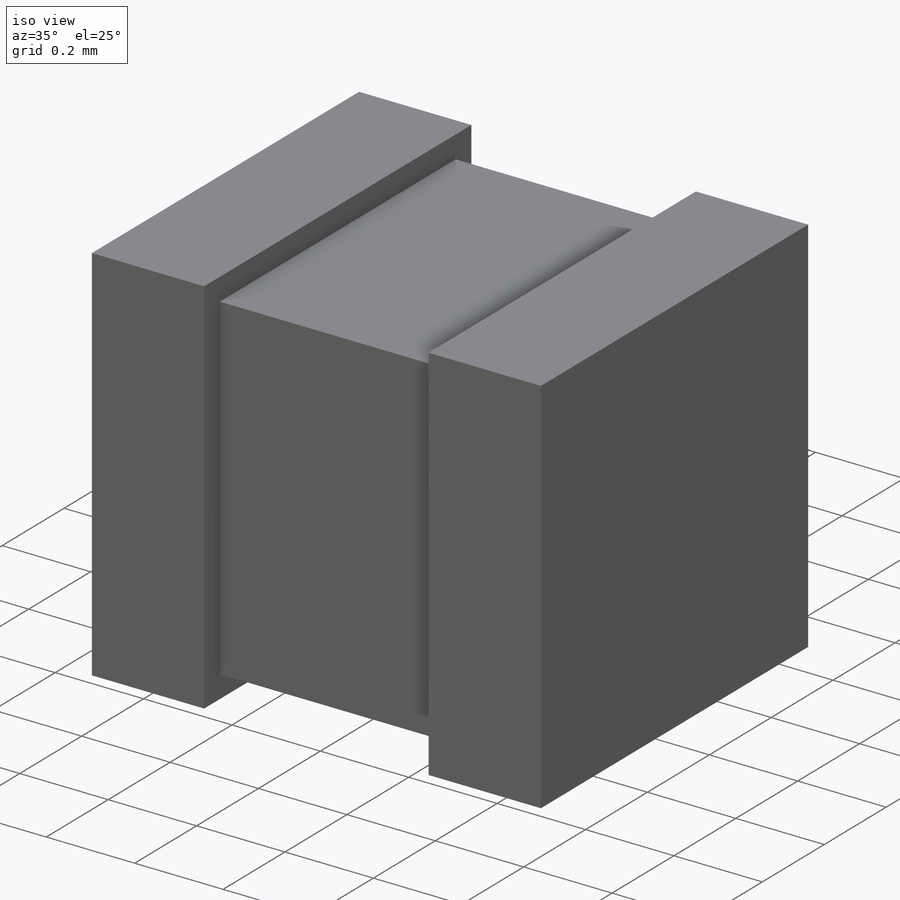
[diagram: iso view]
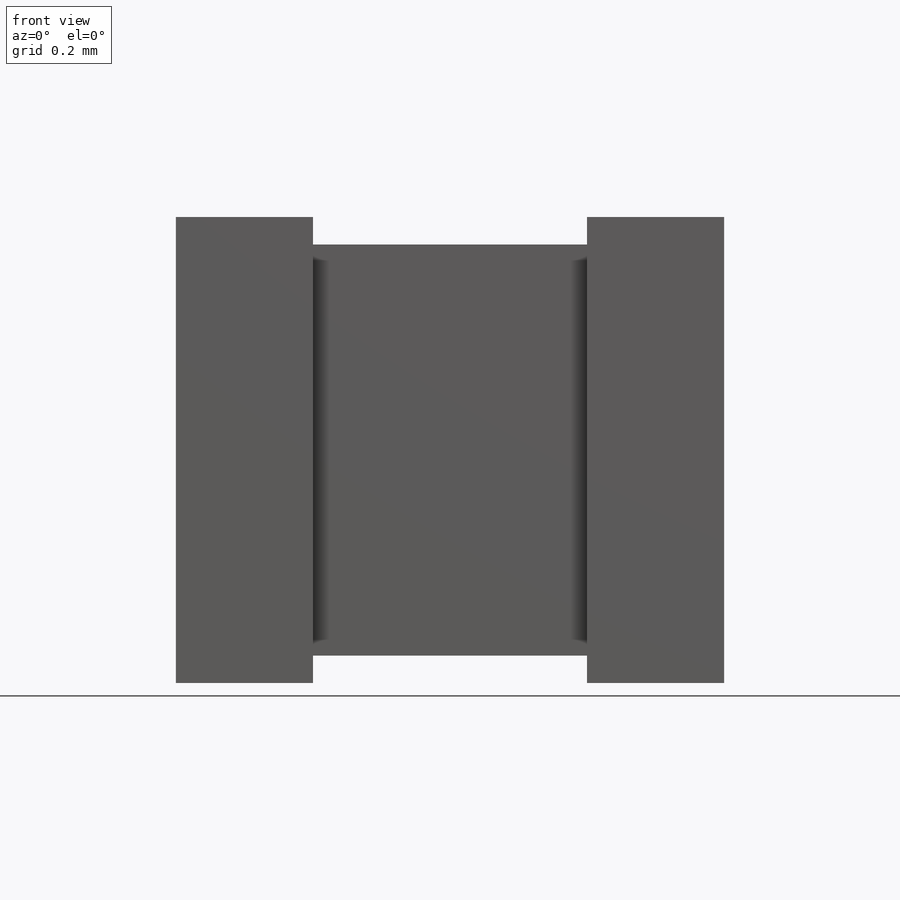
[diagram: front view]
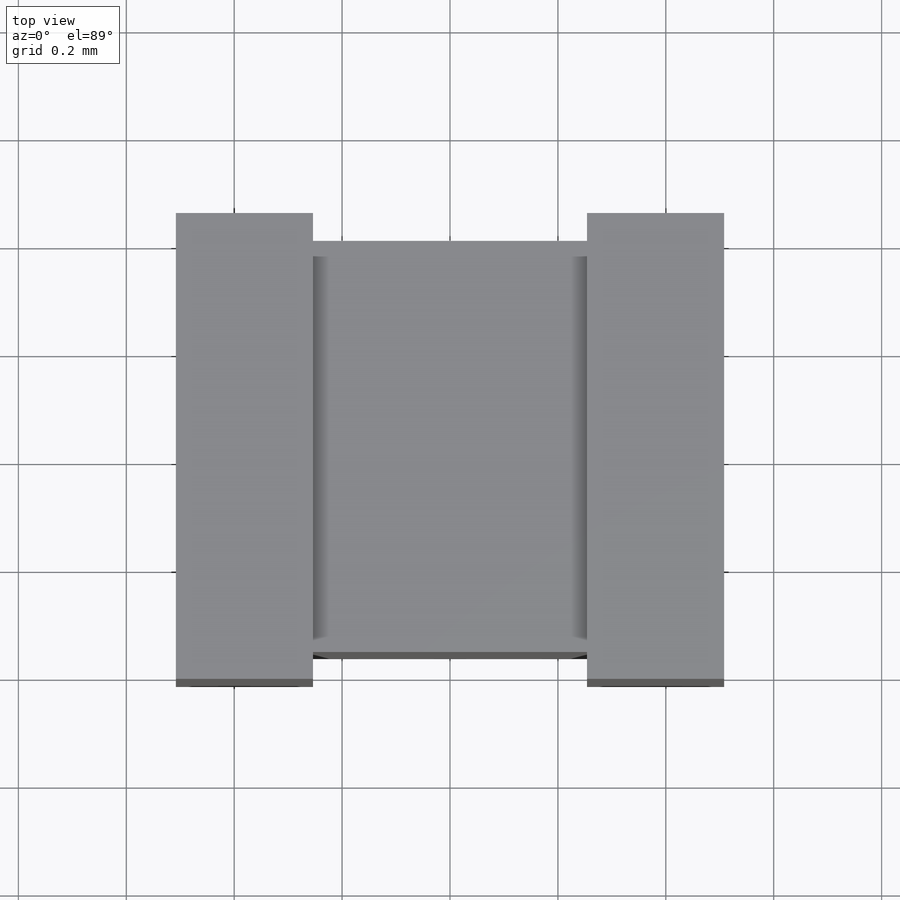
[diagram: top view]
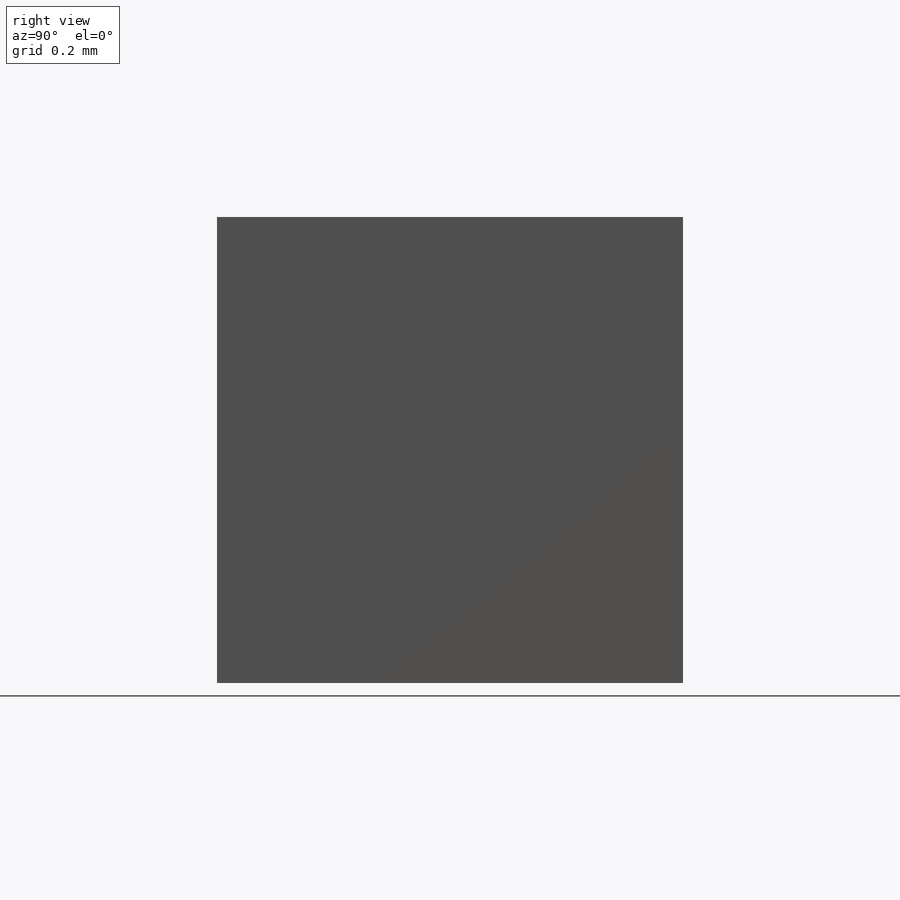
[diagram: right view]
SOLIDWORKS PART (.sldprt)
format: sldprt  version: not decoded by parser v0  size: 338,432 bytes
history: native  units: mm
features: sketch x4, extrude x3, material x1, plane x1 + 1 further entry (+13 scaffold rows collapsed)
feature tree (23):
  scaffold x13  (default folders/planes/origin — collapsed)
  material  "Material <not specified>"
  "Design Table"
  sketch  "Chip"  dims[c1.D1=3.048mm c1.D2=1.27mm c1.D3=3.048mm c2.D1=2.032mm c2.D2=1.016mm c3.D1=0.762mm c3.D3=2.54mm c4.D1=0.508mm c4.W=0.762mm c4.L=1.016mm]
  extrude  "Chip Cap "  Depth=0.762mm T=0.762mm
  sketch  "Solder Band"  dims[D1=0.0508mm D2=0.0508mm Solder=0.0508mm]
  extrude  "Solder Band R"  Depth=0.254mm MB=0.254mm
  sketch  "Sketch3"
  extrude  "Solder Band L"  Depth=0.254mm
  plane  "Board Plane"  Offset=0.4318mm
  sketch  "Component_Outline"
decode coverage: 5 of 7 modeling features carry decoded parameters; 1 rows unclassified (native names shown)
note: suppression state not decoded; provenance and decode notes live in map.json
